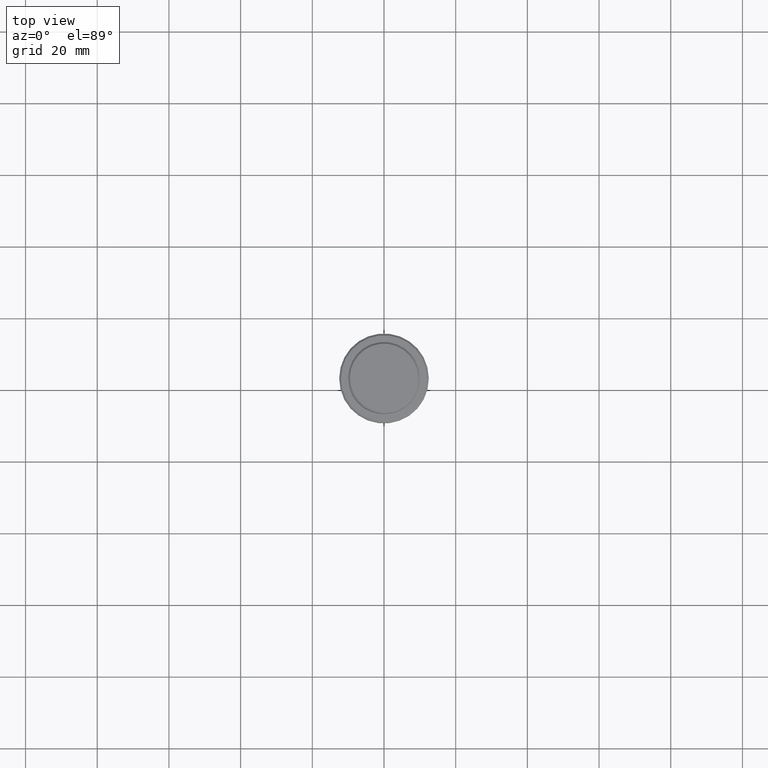
[diagram: clean part render]
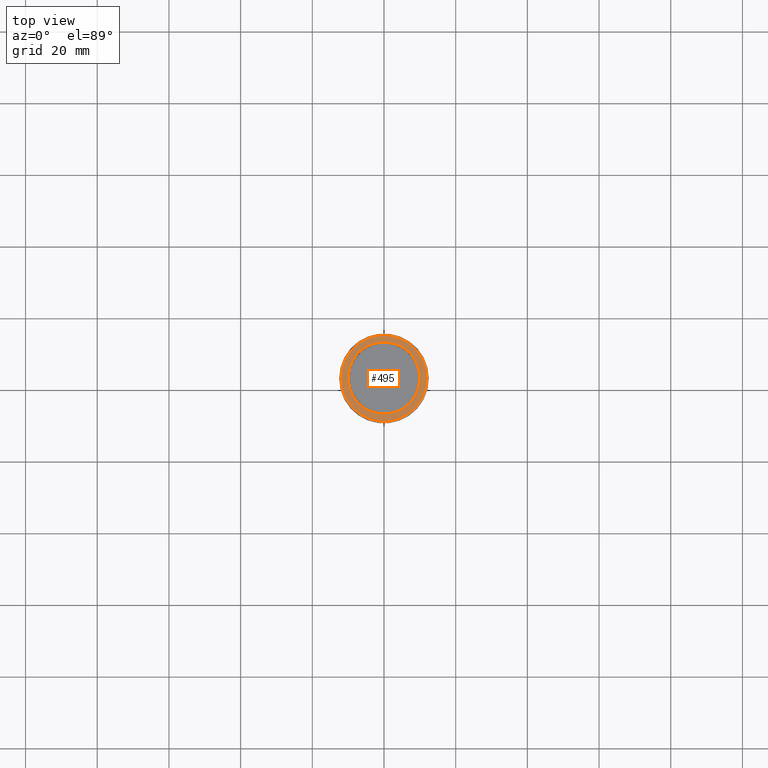
[diagram: same view with one face highlighted and labeled with its STEP entity id]
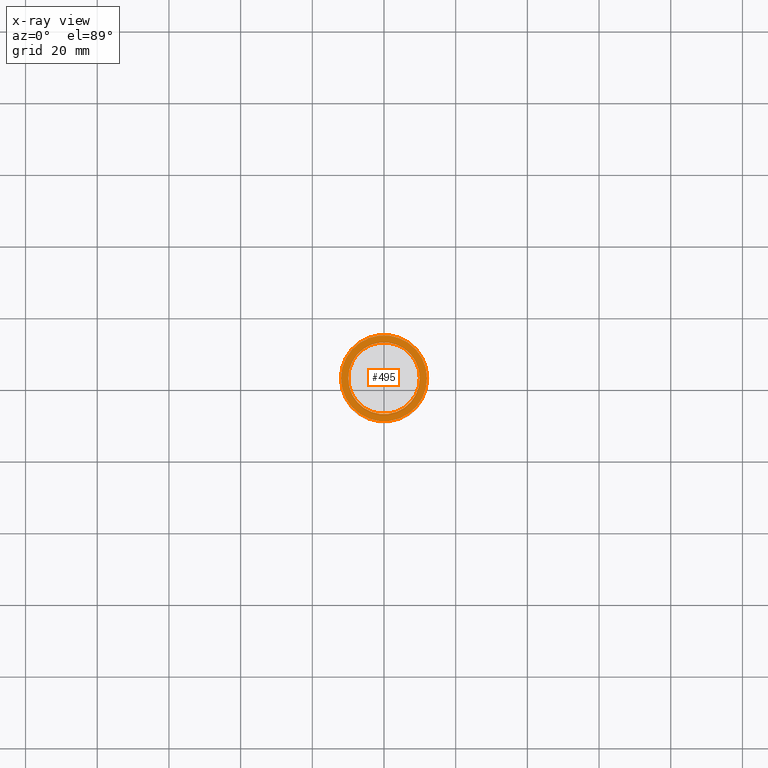
[diagram: x-ray of the same camera — body ghosted, the highlighted face saturated]
A machine part, top view. The second image highlights one B-rep face of the part: STEP entity #495.
The next image is the same camera in x-ray: the body ghosted, the highlighted face saturated — about 0% of this face is hidden behind the body in this view.
In plain terms, the highlighted planar face has unit normal (0, -0, 1).
Its self-contained STEP definition (entity closure, byte-faithful):
#22 = DIRECTION ( 'NONE',  ( -0.000000000000000000, -0.000000000000000000, 1.000000000000000000 ) ) ;
#55 = CARTESIAN_POINT ( 'NONE',  ( 0.000000000000000000, 0.000000000000000000, -9.000000000000000000 ) ) ;
#94 = EDGE_LOOP ( 'NONE', ( #1208, #611 ) ) ;
#112 = EDGE_CURVE ( 'NONE', #1360, #1232, #208, .T. ) ;
#154 = DIRECTION ( 'NONE',  ( 1.000000000000000000, 0.000000000000000000, 0.000000000000000000 ) ) ;
#208 = CIRCLE ( 'NONE', #341, 12.00000000000003908 ) ;
#239 = VERTEX_POINT ( 'NONE', #362 ) ;
#240 = EDGE_CURVE ( 'NONE', #1232, #1360, #1117, .T. ) ;
#268 = DIRECTION ( 'NONE',  ( 1.000000000000000000, 0.000000000000000000, 0.000000000000000000 ) ) ;
#273 = DIRECTION ( 'NONE',  ( 0.000000000000000000, 0.000000000000000000, -1.000000000000000000 ) ) ;
#289 = DIRECTION ( 'NONE',  ( 1.000000000000000000, 0.000000000000000000, 0.000000000000000000 ) ) ;
#341 = AXIS2_PLACEMENT_3D ( 'NONE', #995, #22, #268 ) ;
#362 = CARTESIAN_POINT ( 'NONE',  ( -9.999999999999992895, 1.224646799147352468E-15, -9.000000000000000000 ) ) ;
#401 = CARTESIAN_POINT ( 'NONE',  ( 12.00000000000003908, 1.500192328955510101E-15, -9.000000000000000000 ) ) ;
#495 = ADVANCED_FACE ( 'NONE', ( #971, #864 ), #643, .T. ) ;
#499 = DIRECTION ( 'NONE',  ( 0.000000000000000000, 0.000000000000000000, -1.000000000000000000 ) ) ;
#514 = AXIS2_PLACEMENT_3D ( 'NONE', #55, #906, #823 ) ;
#593 = CIRCLE ( 'NONE', #890, 9.999999999999992895 ) ;
#611 = ORIENTED_EDGE ( 'NONE', *, *, #112, .T. ) ;
#622 = AXIS2_PLACEMENT_3D ( 'NONE', #1415, #729, #1165 ) ;
#643 = PLANE ( 'NONE',  #622 ) ;
#686 = CIRCLE ( 'NONE', #1353, 9.999999999999992895 ) ;
#724 = ORIENTED_EDGE ( 'NONE', *, *, #824, .T. ) ;
#729 = DIRECTION ( 'NONE',  ( 0.000000000000000000, -0.000000000000000000, 1.000000000000000000 ) ) ;
#747 = EDGE_LOOP ( 'NONE', ( #836, #724 ) ) ;
#823 = DIRECTION ( 'NONE',  ( 1.000000000000000000, 0.000000000000000000, 0.000000000000000000 ) ) ;
#824 = EDGE_CURVE ( 'NONE', #239, #968, #593, .T. ) ;
#836 = ORIENTED_EDGE ( 'NONE', *, *, #1313, .T. ) ;
#864 = FACE_BOUND ( 'NONE', #747, .T. ) ;
#890 = AXIS2_PLACEMENT_3D ( 'NONE', #1139, #499, #154 ) ;
#906 = DIRECTION ( 'NONE',  ( -0.000000000000000000, -0.000000000000000000, 1.000000000000000000 ) ) ;
#968 = VERTEX_POINT ( 'NONE', #1159 ) ;
#971 = FACE_OUTER_BOUND ( 'NONE', #94, .T. ) ;
#995 = CARTESIAN_POINT ( 'NONE',  ( 0.000000000000000000, 0.000000000000000000, -9.000000000000000000 ) ) ;
#1117 = CIRCLE ( 'NONE', #514, 12.00000000000003908 ) ;
#1139 = CARTESIAN_POINT ( 'NONE',  ( 0.000000000000000000, 0.000000000000000000, -9.000000000000000000 ) ) ;
#1159 = CARTESIAN_POINT ( 'NONE',  ( 9.999999999999992895, 0.000000000000000000, -9.000000000000000000 ) ) ;
#1165 = DIRECTION ( 'NONE',  ( 1.000000000000000000, 0.000000000000000000, 0.000000000000000000 ) ) ;
#1208 = ORIENTED_EDGE ( 'NONE', *, *, #240, .T. ) ;
#1232 = VERTEX_POINT ( 'NONE', #1250 ) ;
#1250 = CARTESIAN_POINT ( 'NONE',  ( -12.00000000000003908, 0.000000000000000000, -9.000000000000000000 ) ) ;
#1259 = CARTESIAN_POINT ( 'NONE',  ( 0.000000000000000000, 0.000000000000000000, -9.000000000000000000 ) ) ;
#1313 = EDGE_CURVE ( 'NONE', #968, #239, #686, .T. ) ;
#1353 = AXIS2_PLACEMENT_3D ( 'NONE', #1259, #273, #289 ) ;
#1360 = VERTEX_POINT ( 'NONE', #401 ) ;
#1415 = CARTESIAN_POINT ( 'NONE',  ( 0.000000000000000000, 9.499999999999992895, -9.000000000000000000 ) ) ;